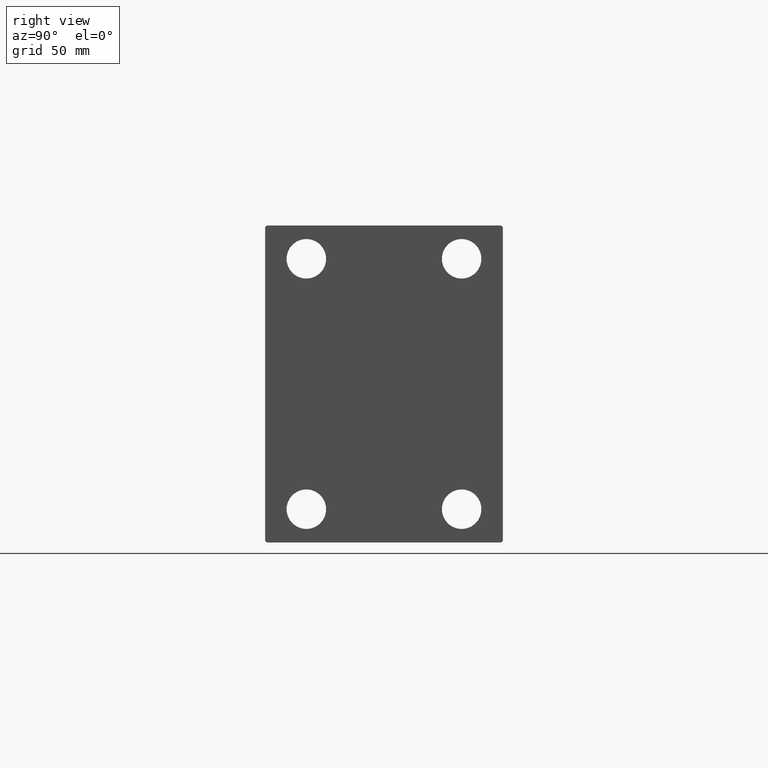
[diagram: clean part render]
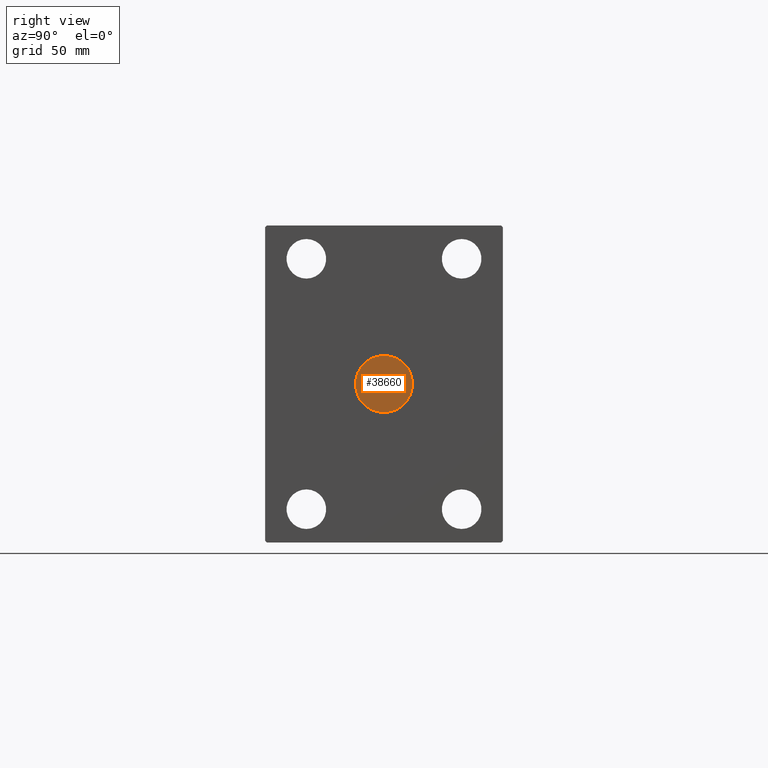
[diagram: same view with one face highlighted and labeled with its STEP entity id]
A machine part, right view. The second image highlights one B-rep face of the part: STEP entity #38660.
In plain terms, the highlighted planar face has unit normal (1, 0, 0).
Its self-contained STEP definition (entity closure, byte-faithful):
#756 = VERTEX_POINT ( 'NONE', #21606 ) ;
#1937 = EDGE_LOOP ( 'NONE', ( #34636, #39111 ) ) ;
#2856 = DIRECTION ( 'NONE',  ( 1.000000000000000000, 0.000000000000000000, 0.000000000000000000 ) ) ;
#4455 = DIRECTION ( 'NONE',  ( 1.000000000000000000, 0.000000000000000000, 0.000000000000000000 ) ) ;
#16149 = CARTESIAN_POINT ( 'NONE',  ( 387.8000000000000114, 0.000000000000000000, 0.000000000000000000 ) ) ;
#16417 = EDGE_CURVE ( 'NONE', #756, #30575, #32738, .T. ) ;
#17279 = FACE_OUTER_BOUND ( 'NONE', #1937, .T. ) ;
#19995 = DIRECTION ( 'NONE',  ( 0.000000000000000000, 0.000000000000000000, -1.000000000000000000 ) ) ;
#21606 = CARTESIAN_POINT ( 'NONE',  ( 387.8000000000000114, 2.204364238465235428E-15, 18.00000000000000000 ) ) ;
#21824 = AXIS2_PLACEMENT_3D ( 'NONE', #16149, #32439, #19995 ) ;
#23724 = DIRECTION ( 'NONE',  ( 0.000000000000000000, 0.000000000000000000, -1.000000000000000000 ) ) ;
#26243 = CIRCLE ( 'NONE', #40607, 18.00000000000000000 ) ;
#28558 = CARTESIAN_POINT ( 'NONE',  ( 387.8000000000000114, 0.000000000000000000, -18.00000000000000000 ) ) ;
#30575 = VERTEX_POINT ( 'NONE', #28558 ) ;
#32199 = CARTESIAN_POINT ( 'NONE',  ( 387.8000000000000114, 0.000000000000000000, 0.000000000000000000 ) ) ;
#32439 = DIRECTION ( 'NONE',  ( 1.000000000000000000, 0.000000000000000000, 0.000000000000000000 ) ) ;
#32738 = CIRCLE ( 'NONE', #21824, 18.00000000000000000 ) ;
#33987 = CARTESIAN_POINT ( 'NONE',  ( 387.8000000000000114, 0.000000000000000000, 0.000000000000000000 ) ) ;
#34211 = EDGE_CURVE ( 'NONE', #30575, #756, #26243, .T. ) ;
#34636 = ORIENTED_EDGE ( 'NONE', *, *, #34211, .T. ) ;
#37406 = PLANE ( 'NONE',  #39222 ) ;
#38660 = ADVANCED_FACE ( 'NONE', ( #17279 ), #37406, .T. ) ;
#39111 = ORIENTED_EDGE ( 'NONE', *, *, #16417, .T. ) ;
#39222 = AXIS2_PLACEMENT_3D ( 'NONE', #33987, #4455, #23724 ) ;
#40607 = AXIS2_PLACEMENT_3D ( 'NONE', #32199, #2856, #42028 ) ;
#42028 = DIRECTION ( 'NONE',  ( 0.000000000000000000, 0.000000000000000000, -1.000000000000000000 ) ) ;